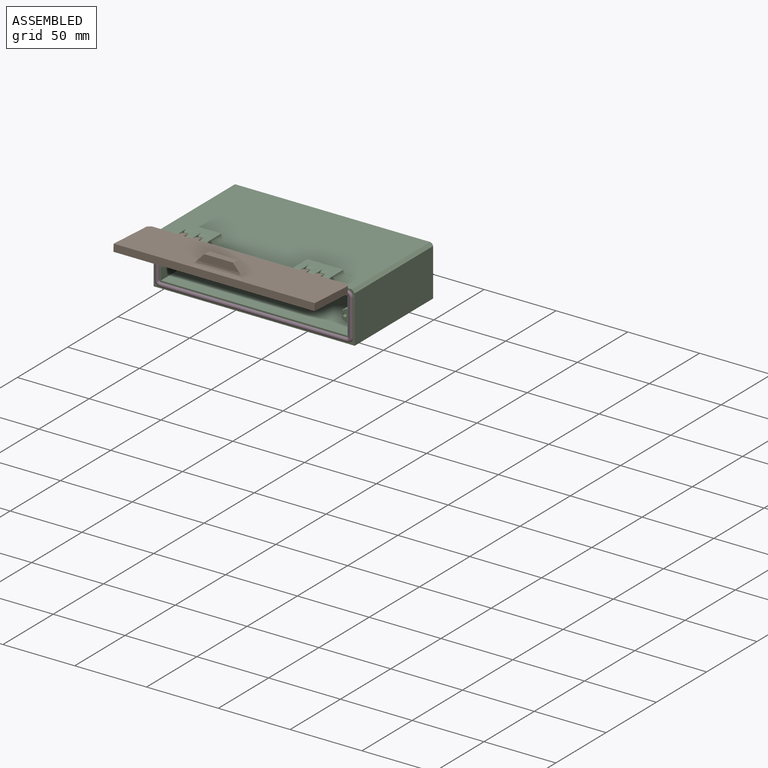
[diagram: assembled view]
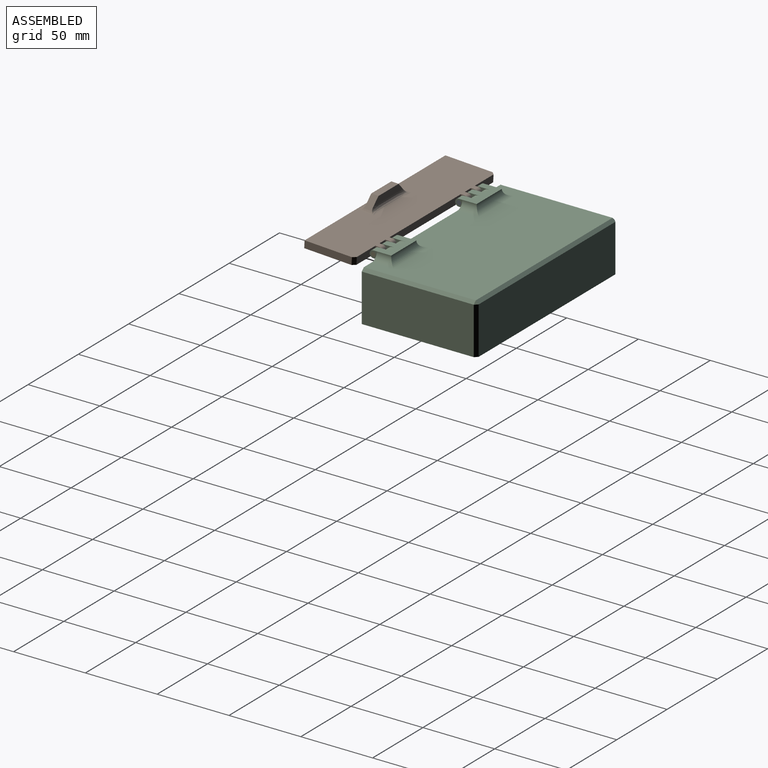
[diagram: assembled view, second angle]
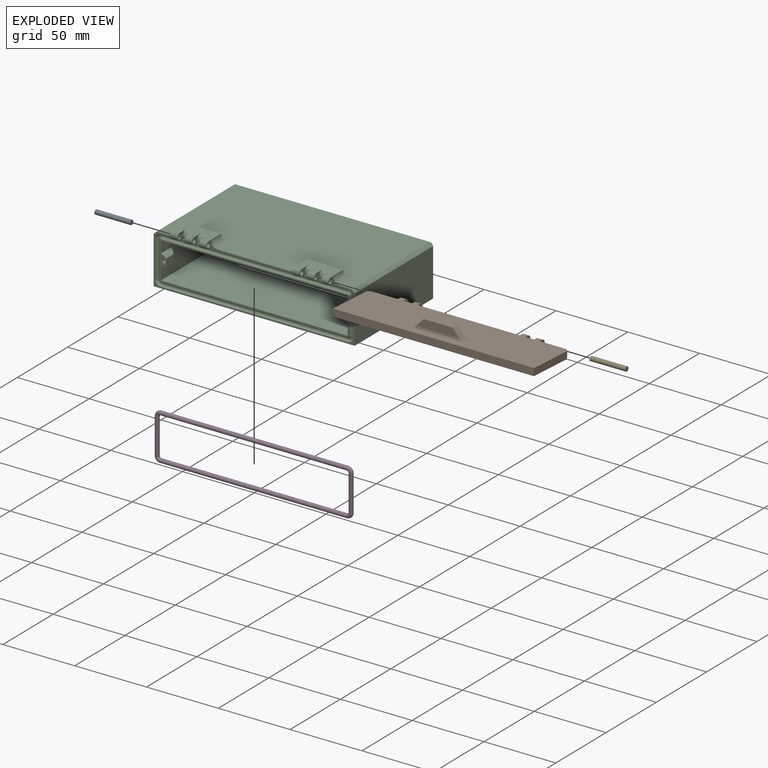
[diagram: exploded view]
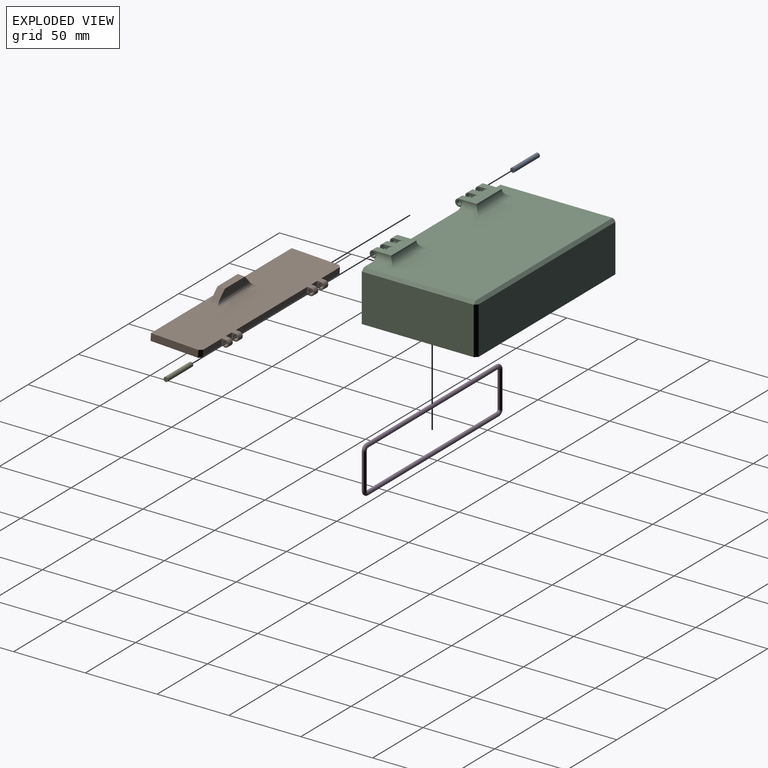
[diagram: exploded view, second angle]
ASSEMBLY  parts=5 mates=4
PART A: 3 faces, bbox 25x3.2x3.2 mm
  f0: cylinder r=1.59mm len=25mm, axis (1,0,0), area 249.4mm2, adj f1,f2
  f1: plane 3.18x3.18mm, normal (-1,0,0), area 7.9mm2, adj f0
  f2: plane 3.18x3.18mm, normal (1,0,0), area 7.9mm2, adj f0
PART B: 48 faces, bbox 140.1x14.1x40.1 mm
  f0: plane 132.15x27.15mm, normal (0,1,0), area 3577.1mm2, adj f25,f26,f27,f28,f29,f30,f31,f32
  f1: plane 140x37.5mm, normal (0,1,0), area 400.9mm2, adj f2,f3,f4,f5,f6,f7,f12,f13
  f2: plane 71x5mm, normal (0,0,1), area 355mm2, adj f1,f8,f13,f19
  f3: plane 28.5x5mm, normal (0,0,1), area 132.5mm2, adj f1,f8,f9,f10,f11,f14,f43
  f4: plane 28.5x5mm, normal (0,0,1), area 132.5mm2, adj f1,f8,f15,f16,f17,f20,f42
  f5: plane 33x5mm, normal (-1,0,0), area 165mm2, adj f1,f6,f8,f43
  f6: plane 140x5mm, normal (0,0,-1), area 700mm2, adj f1,f5,f7,f8
  f7: plane 33x5mm, normal (1,0,0), area 165mm2, adj f1,f6,f8,f42
  f8: plane 140x37.5mm, normal (0,-1,0), area 4522.4mm2, adj f2,f3,f4,f5,f6,f7,f9,f10
  f9: cylinder r=2.5mm len=5mm, axis (-1,0,0), area 47.1mm2, adj f3,f8,f10,f11
  f10: plane 5x5mm, normal (1,0,0), area 13.1mm2, adj f3,f8,f9,f24
  f11: plane 5x5mm, normal (-1,0,0), area 13.1mm2, adj f3,f8,f9,f24
  f12: cylinder r=2.5mm len=5mm, axis (-1,0,0), area 31.4mm2, adj f1,f8,f13,f14
  f13: plane 5x5mm, normal (1,0,0), area 14.4mm2, adj f1,f2,f8,f12,f23
  f14: plane 5x5mm, normal (-1,0,0), area 14.4mm2, adj f1,f3,f8,f12,f23
  f15: cylinder r=2.5mm len=5mm, axis (1,0,0), area 47.1mm2, adj f4,f8,f16,f17
  f16: plane 5x5mm, normal (-1,0,0), area 13.1mm2, adj f4,f8,f15,f22
  f17: plane 5x5mm, normal (1,0,0), area 13.1mm2, adj f4,f8,f15,f22
  f18: cylinder r=2.5mm len=5mm, axis (1,0,0), area 31.4mm2, adj f1,f8,f19,f20
  f19: plane 5x5mm, normal (-1,0,0), area 14.4mm2, adj f1,f2,f8,f18,f21
  f20: plane 5x5mm, normal (1,0,0), area 14.4mm2, adj f1,f4,f8,f18,f21
  f21: cylinder r=1.59mm len=4mm, axis (-1,0,0), area 39.9mm2, adj f19,f20
  f22: cylinder r=1.59mm len=4mm, axis (-1,0,0), area 39.9mm2, adj f16,f17
  f23: cylinder r=1.59mm len=4mm, axis (-1,0,0), area 39.9mm2, adj f13,f14
  f24: cylinder r=1.59mm len=4mm, axis (-1,0,0), area 39.9mm2, adj f10,f11
  f25: torus R=2.5mm, axis (0,-1,0), area 17.6mm2, adj f0,f1,f26,f32
  f26: cylinder r=1.43mm len=130mm, axis (1,0,0), area 582mm2, adj f0,f1,f25,f27
  f27: torus R=2.5mm, axis (0,-1,0), area 17.6mm2, adj f0,f1,f26,f28
  f28: cylinder r=1.43mm len=25mm, axis (0,0,-1), area 111.9mm2, adj f0,f1,f27,f29
  f29: torus R=2.5mm, axis (0,-1,0), area 17.6mm2, adj f0,f1,f28,f30
  f30: cylinder r=1.43mm len=130mm, axis (-1,0,0), area 582mm2, adj f0,f1,f29,f31
  f31: torus R=2.5mm, axis (0,-1,0), area 17.6mm2, adj f0,f1,f30,f32
  f32: cylinder r=1.43mm len=25mm, axis (0,0,1), area 111.9mm2, adj f0,f1,f25,f31
  f33: plane 20x5mm, normal (0,-1,0), area 100mm2, adj f34,f35,f36,f37
  f34: plane 29.38x5mm, normal (0,0,-1), area 123.4mm2, adj f33,f35,f37,f38
  f35: plane 7.18x6.74mm, normal (0.73,-0.68,0), area 49.2mm2, adj f33,f34,f36,f38,f39,f41
  f36: plane 29.38x5mm, normal (0,0,1), area 123.4mm2, adj f33,f35,f37,f41
  f37: plane 7.18x6.74mm, normal (-0.73,-0.68,0), area 49.2mm2, adj f33,f34,f36,f38,f40,f41
  f38: bspline ~40.52x3mm, area 163.8mm2, adj f8,f34,f35,f37,f39,f40
  f39: bspline ~11.86x2.19mm, area 21.1mm2, adj f8,f35,f38,f41
  f40: bspline ~11.86x2.19mm, area 21.1mm2, adj f8,f37,f38,f41
  f41: bspline ~40.52x3mm, area 163.8mm2, adj f8,f35,f36,f37,f39,f40
  f42: plane 5x2mm, normal (0.71,0,0.71), area 14.1mm2, adj f1,f4,f7,f8
  f43: plane 5x2mm, normal (-0.71,0,0.71), area 14.1mm2, adj f1,f3,f5,f8
  f44: cylinder r=1.25mm len=3mm, axis (0,1,0), area 23.6mm2, adj f0,f45
  f45: plane 2.5x2.5mm, normal (0,1,0), area 4.9mm2, adj f44
  f46: cylinder r=1.25mm len=3mm, axis (0,1,0), area 23.6mm2, adj f0,f47
  f47: plane 2.5x2.5mm, normal (0,1,0), area 4.9mm2, adj f46
PART C: 85 faces, bbox 141x86x41 mm
  f0: plane 75x25mm, normal (-1,0,0), area 1785mm2, adj f61,f62,f63,f65,f78,f80,f82
  f1: plane 140x40mm, normal (0,-1,0), area 402.3mm2, adj f4,f5,f6,f7,f12,f13,f14,f16
  f2: plane 25x12.5mm, normal (0,0,1), area 232.5mm2, adj f10,f11,f18,f19,f20,f21,f22,f23
  f3: plane 25x12.5mm, normal (0,0,1), area 232.5mm2, adj f8,f9,f32,f33,f34,f35,f36,f37
  f4: plane 5x2.5mm, normal (0,0,-1), area 12.5mm2, adj f1,f11,f18,f22
  f5: plane 5x2.5mm, normal (0,0,-1), area 12.5mm2, adj f1,f10,f21,f24
  f6: plane 5x2.5mm, normal (0,0,-1), area 12.5mm2, adj f1,f8,f35,f38
  f7: plane 5x2.5mm, normal (0,0,-1), area 12.5mm2, adj f1,f9,f32,f36
  f8: cylinder r=2.5mm len=5mm, axis (1,0,0), area 39.3mm2, adj f3,f6,f35,f38
  f9: cylinder r=2.5mm len=5mm, axis (1,0,0), area 39.3mm2, adj f3,f7,f32,f36
  f10: cylinder r=2.5mm len=5mm, axis (-1,0,0), area 39.3mm2, adj f2,f5,f21,f24
  f11: cylinder r=2.5mm len=5mm, axis (-1,0,0), area 39.3mm2, adj f2,f4,f18,f22
  f12: plane 136x78mm, normal (0,0,1), area 9558mm2, adj f1,f28,f29,f30,f42,f43,f44,f67
  f13: plane 78x33mm, normal (-1,0,0), area 2574mm2, adj f1,f16,f70,f72
  f14: plane 78x33mm, normal (1,0,0), area 2574mm2, adj f1,f16,f66,f67
  f15: plane 136x33mm, normal (0,1,0), area 4488mm2, adj f16,f66,f69,f72
  f16: plane 140x80mm, normal (0,0,-1), area 11196mm2, adj f1,f13,f14,f15,f66,f72
  f17: plane 5x2.5mm, normal (0,0,-1), area 12.5mm2, adj f1,f19,f20,f23
  f18: plane 5x5mm, normal (-1,0,0), area 14.4mm2, adj f1,f2,f4,f11,f27
  f19: plane 5x5mm, normal (1,0,0), area 14.4mm2, adj f1,f2,f17,f20,f26
  f20: cylinder r=2.5mm len=5mm, axis (-1,0,0), area 39.3mm2, adj f2,f17,f19,f23
  f21: plane 11.55x6.05mm, normal (-1,0,0), area 19.9mm2, adj f2,f5,f10,f25,f48,f52
  f22: plane 11.55x6.05mm, normal (1,0,0), area 19.9mm2, adj f2,f4,f11,f27,f48,f52
  f23: plane 11.55x6.05mm, normal (-1,0,0), area 19.9mm2, adj f2,f17,f20,f26,f47,f51
  f24: plane 11.55x6.05mm, normal (1,0,0), area 19.9mm2, adj f2,f5,f10,f25,f47,f51
  f25: cylinder r=1.59mm len=5mm, axis (-1,0,0), area 49.9mm2, adj f21,f24
  f26: cylinder r=1.59mm len=5mm, axis (-1,0,0), area 49.9mm2, adj f19,f23
  f27: cylinder r=1.59mm len=5mm, axis (-1,0,0), area 49.9mm2, adj f18,f22
  f28: cylinder r=5mm len=15mm, axis (0,1,0), area 98.2mm2, adj f1,f2,f12,f29
  f29: cylinder r=5mm len=35mm, axis (-1,0,0), area 235.6mm2, adj f2,f12,f28,f30
  f30: cylinder r=5mm len=15mm, axis (0,-1,0), area 98.2mm2, adj f1,f2,f12,f29
  f31: plane 5x2.5mm, normal (0,0,-1), area 12.5mm2, adj f1,f33,f34,f37
  f32: plane 5x5mm, normal (1,0,0), area 14.4mm2, adj f1,f3,f7,f9,f41
  f33: plane 5x5mm, normal (-1,0,0), area 14.4mm2, adj f1,f3,f31,f34,f40
  f34: cylinder r=2.5mm len=5mm, axis (1,0,0), area 39.3mm2, adj f3,f31,f33,f37
  f35: plane 11.55x6.05mm, normal (1,0,0), area 19.9mm2, adj f3,f6,f8,f39,f45,f49
  f36: plane 11.55x6.05mm, normal (-1,0,0), area 19.9mm2, adj f3,f7,f9,f41,f45,f49
  f37: plane 11.55x6.05mm, normal (1,0,0), area 19.9mm2, adj f3,f31,f34,f40,f46,f50
  f38: plane 11.55x6.05mm, normal (-1,0,0), area 19.9mm2, adj f3,f6,f8,f39,f46,f50
  f39: cylinder r=1.59mm len=5mm, axis (1,0,0), area 49.9mm2, adj f35,f38
  f40: cylinder r=1.59mm len=5mm, axis (1,0,0), area 49.9mm2, adj f33,f37
  f41: cylinder r=1.59mm len=5mm, axis (1,0,0), area 49.9mm2, adj f32,f36
  f42: cylinder r=5mm len=15mm, axis (0,-1,0), area 98.2mm2, adj f1,f3,f12,f43
  f43: cylinder r=5mm len=35mm, axis (-1,0,0), area 235.6mm2, adj f3,f12,f42,f44
  f44: cylinder r=5mm len=15mm, axis (0,1,0), area 98.2mm2, adj f1,f3,f12,f43
  f45: plane 5x0.5mm, normal (0,0,1), area 2.5mm2, adj f1,f35,f36,f49
  f46: plane 5x0.5mm, normal (0,0,1), area 2.5mm2, adj f1,f37,f38,f50
  f47: plane 5x0.5mm, normal (0,0,1), area 2.5mm2, adj f1,f23,f24,f51
  f48: plane 5x0.5mm, normal (0,0,1), area 2.5mm2, adj f1,f21,f22,f52
  f49: bspline ~5.5x5mm, area 42.2mm2, adj f3,f35,f36,f45
  f50: bspline ~5.5x5mm, area 42.2mm2, adj f3,f37,f38,f46
  f51: bspline ~5.5x5mm, area 42.2mm2, adj f2,f23,f24,f47
  f52: bspline ~5.5x5mm, area 42.2mm2, adj f2,f21,f22,f48
  f53: torus R=2.5mm, axis (0,1,0), area 17.6mm2, adj f1,f54,f60,f65
  f54: cylinder r=1.43mm len=130mm, axis (-1,0,0), area 582mm2, adj f1,f53,f55,f65
  f55: torus R=2.5mm, axis (0,1,0), area 17.6mm2, adj f1,f54,f56,f65
  f56: cylinder r=1.43mm len=25mm, axis (0,0,-1), area 111.9mm2, adj f1,f55,f57,f65
  f57: torus R=2.5mm, axis (0,1,0), area 17.6mm2, adj f1,f56,f58,f65
  f58: cylinder r=1.43mm len=130mm, axis (1,0,0), area 582mm2, adj f1,f57,f59,f65
  f59: torus R=2.5mm, axis (0,1,0), area 17.6mm2, adj f1,f58,f60,f65
  f60: cylinder r=1.43mm len=25mm, axis (0,0,1), area 111.9mm2, adj f1,f53,f59,f65
  f61: plane 130x25mm, normal (0,-1,0), area 3250mm2, adj f0,f62,f63,f64
  f62: plane 130x75mm, normal (0,0,1), area 9750mm2, adj f0,f61,f64,f65
  f63: plane 130x75mm, normal (0,0,-1), area 9750mm2, adj f0,f61,f64,f65
  f64: plane 75x25mm, normal (1,0,0), area 1785mm2, adj f61,f62,f63,f65,f73,f74,f77
  f65: plane 132.15x27.15mm, normal (0,-1,0), area 383.1mm2, adj f0,f53,f54,f55,f56,f57,f58,f59
  f66: plane 33x2mm, normal (0.71,0.71,0), area 93.3mm2, adj f14,f15,f16,f68
  f67: plane 78x2mm, normal (0.71,0,0.71), area 220.6mm2, adj f1,f12,f14,f68
  f68: plane 2x2mm, normal (0.58,0.58,0.58), area 3.5mm2, adj f66,f67,f69
  f69: plane 136x2mm, normal (0,0.71,0.71), area 384.7mm2, adj f12,f15,f68,f71
  f70: plane 78x2mm, normal (-0.71,0,0.71), area 220.6mm2, adj f1,f12,f13,f71
  f71: plane 2x2mm, normal (-0.58,0.58,0.58), area 3.5mm2, adj f69,f70,f72
  f72: plane 33x2mm, normal (-0.71,0.71,0), area 93.3mm2, adj f13,f15,f16,f71
  f73: plane 10x4mm, normal (0.45,0,0.89), area 39.7mm2, adj f64,f65,f76,f77,f83
  f74: plane 10x4mm, normal (0.45,0,-0.89), area 39.7mm2, adj f64,f65,f76,f77,f83
  f75: cylinder r=1.25mm len=10mm, axis (0,-1,0), area 70.4mm2, adj f65,f77,f83
  f76: plane 7x5mm, normal (1,0,0), area 35mm2, adj f65,f73,f74,f83
  f77: plane 9x1mm, normal (0,1,0), area 8.2mm2, adj f64,f73,f74,f75,f83
  f78: plane 10x4mm, normal (-0.45,0,0.89), area 39.7mm2, adj f0,f65,f79,f82,f84
  f79: plane 7x5mm, normal (-1,0,0), area 35mm2, adj f65,f78,f80,f84
  f80: plane 10x4mm, normal (-0.45,0,-0.89), area 39.7mm2, adj f0,f65,f79,f82,f84
  f81: cylinder r=1.25mm len=10mm, axis (0,-1,0), area 70.4mm2, adj f65,f82,f84
  f82: plane 9x1mm, normal (0,1,0), area 8.2mm2, adj f0,f78,f80,f81,f84
  f83: plane 8.12x3.12mm, normal (0.71,0.71,0), area 21mm2, adj f73,f74,f75,f76,f77
  f84: plane 8.12x3.12mm, normal (-0.71,0.71,0), area 21mm2, adj f78,f79,f80,f81,f82
PART D: 8 faces, bbox 138.5x2.9x33.5 mm
  f0: torus R=2.5mm, axis (0,-1,0), area 35.2mm2, adj f1,f7
  f1: cylinder r=1.43mm len=130mm, axis (1,0,0), area 1164mm2, adj f0,f2
  f2: torus R=2.5mm, axis (0,-1,0), area 35.2mm2, adj f1,f3
  f3: cylinder r=1.43mm len=25mm, axis (0,0,-1), area 223.8mm2, adj f2,f4
  f4: torus R=2.5mm, axis (0,-1,0), area 35.2mm2, adj f3,f5
  f5: cylinder r=1.43mm len=130mm, axis (-1,0,0), area 1164mm2, adj f4,f6
  f6: torus R=2.5mm, axis (0,-1,0), area 35.2mm2, adj f5,f7
  f7: cylinder r=1.43mm len=25mm, axis (0,0,1), area 223.8mm2, adj f0,f6
PART E: 3 faces, bbox 25x3.2x3.2 mm
  f0: cylinder r=1.59mm len=25mm, axis (-1,0,0), area 249.4mm2, adj f1,f2
  f1: plane 3.18x3.18mm, normal (1,0,0), area 7.9mm2, adj f0
  f2: plane 3.18x3.18mm, normal (-1,0,0), area 7.9mm2, adj f0
PLACE A t=(-83.35,-62.42,-1.21)mm
PLACE B rot(axis=(-1,0,0),93.1deg) t=(1.65,-144.68,-4.11)mm
PLACE C t=(1.65,-62.42,-1.21)mm fixed
PLACE D t=(1.65,-62.42,-1.21)mm
PLACE E t=(86.65,-62.42,-1.21)mm
MATE revolute B.f9 <-> C.f8  axis (-1,0,0) through (47.15,-104.92,36.29)mm
MATE fastened A.f0 <-> C.f8  axis (1,0,0) through (-28.35,-104.92,36.29)mm
MATE fastened D.f3 <-> C.f60  axis (0,0,-1) through (-65.85,-102.42,28.79)mm
MATE fastened E.f0 <-> C.f8  axis (1,0,0) through (56.65,-104.92,36.29)mm
